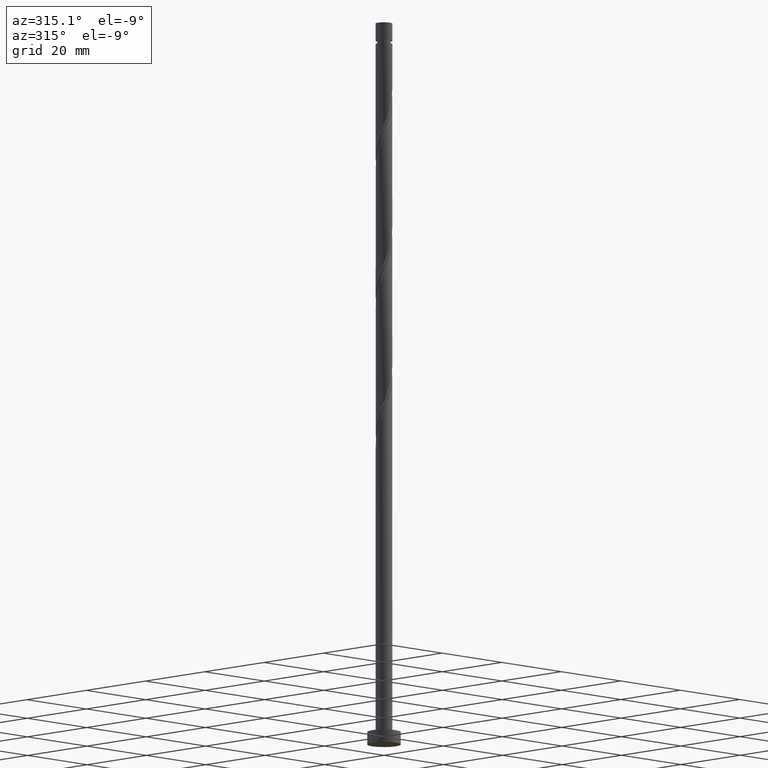
[diagram: clean part render]
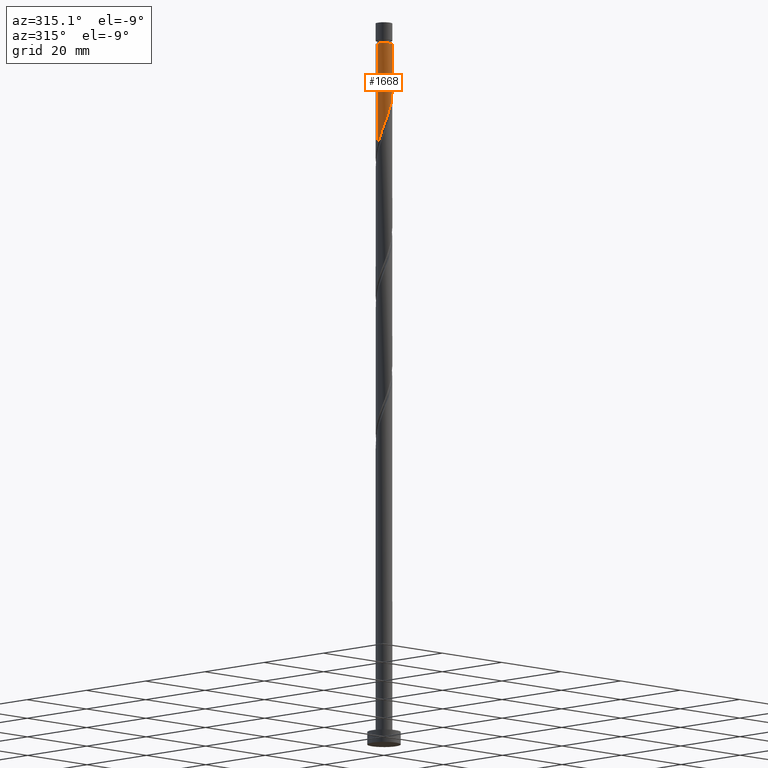
[diagram: same view with one face highlighted and labeled with its STEP entity id]
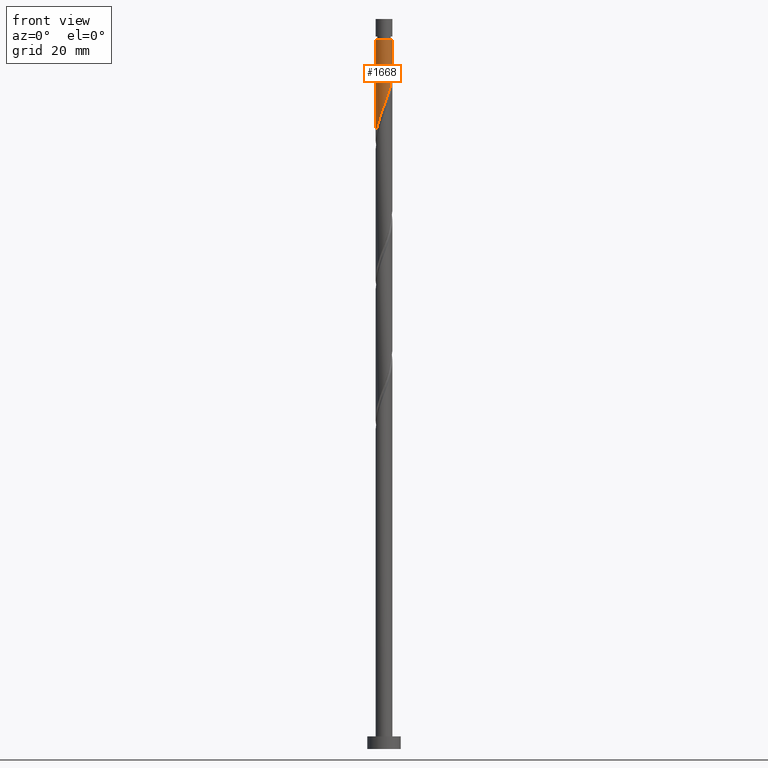
[diagram: same view with one face highlighted and labeled with its STEP entity id]
A machine part, auxiliary view. The second image highlights one B-rep face of the part: STEP entity #1668.
A second angle (front view) of the same face is appended — the face is thin or edge-on in the first view.
In plain terms, the highlighted cylindrical surface (edge-blend (fillet) strip) has radius 2 mm, axis along (-0, -0, -1).
Its self-contained STEP definition (entity closure, byte-faithful):
#14 = CARTESIAN_POINT ( 'NONE',  ( 2.000000000000000000, 3.289832577596410225E-16, 161.5817495075736190 ) ) ;
#34 = CARTESIAN_POINT ( 'NONE',  ( 0.000000000000000000, 0.000000000000000000, 168.8515161856969371 ) ) ;
#97 = DIRECTION ( 'NONE',  ( -0.000000000000000000, -0.000000000000000000, -1.000000000000000000 ) ) ;
#106 = DIRECTION ( 'NONE',  ( -1.000000000000000000, 0.000000000000000000, 0.000000000000000000 ) ) ;
#122 = DIRECTION ( 'NONE',  ( -0.000000000000000000, -0.000000000000000000, -1.000000000000000000 ) ) ;
#137 = CARTESIAN_POINT ( 'NONE',  ( 0.6353262412077166355, -1.896407278838824650, 154.9626272968080798 ) ) ;
#139 = CARTESIAN_POINT ( 'NONE',  ( -2.000000000000000000, 0.000000000000000000, 173.8199999999999932 ) ) ;
#151 = CARTESIAN_POINT ( 'NONE',  ( 2.000000000000000000, -0.2010075630518415035, 161.0483231383844043 ) ) ;
#153 = VERTEX_POINT ( 'NONE', #1635 ) ;
#159 = VERTEX_POINT ( 'NONE', #589 ) ;
#214 = EDGE_CURVE ( 'NONE', #802, #153, #1112, .T. ) ;
#219 = CARTESIAN_POINT ( 'NONE',  ( 0.8849929959097647680, -1.812764992401015629, 155.6570717412524800 ) ) ;
#266 = CARTESIAN_POINT ( 'NONE',  ( -1.896407278838824428, -0.6353262412077168575, 146.6292939634746801 ) ) ;
#269 = CARTESIAN_POINT ( 'NONE',  ( 0.000000000000000000, 0.000000000000000000, 173.8199999999999932 ) ) ;
#310 = ORIENTED_EDGE ( 'NONE', *, *, #657, .F. ) ;
#311 = DIRECTION ( 'NONE',  ( -1.000000000000000000, 0.000000000000000000, 0.000000000000000000 ) ) ;
#339 = AXIS2_PLACEMENT_3D ( 'NONE', #34, #1122, #311 ) ;
#384 = CARTESIAN_POINT ( 'NONE',  ( -2.000000000000000444, -0.06148390331533977460, 145.0782465289351251 ) ) ;
#389 = EDGE_LOOP ( 'NONE', ( #653, #1454, #1551, #310 ) ) ;
#407 = CARTESIAN_POINT ( 'NONE',  ( -2.000000000000000000, -8.523657132863426313E-16, 144.9150828409069618 ) ) ;
#413 = CARTESIAN_POINT ( 'NONE',  ( -1.980049565276631895, -0.3856594865056686139, 145.9348495190302515 ) ) ;
#462 = CARTESIAN_POINT ( 'NONE',  ( 1.672808912829662153, -1.127404036555502698, 158.4348495190303368 ) ) ;
#507 = CARTESIAN_POINT ( 'NONE',  ( -1.127404036555501587, -1.672808912829662598, 150.1015161856968803 ) ) ;
#516 = CARTESIAN_POINT ( 'NONE',  ( -1.324673758792283218, -1.498412303996174755, 149.4070717412524516 ) ) ;
#526 = CARTESIAN_POINT ( 'NONE',  ( -1.667354236715039573, -1.104504345536226673, 148.0181828523636227 ) ) ;
#529 = CARTESIAN_POINT ( 'NONE',  ( 2.000000000000000000, 2.449293598294706414E-16, 173.8199999999999932 ) ) ;
#563 = VECTOR ( 'NONE', #1620, 1000.000000000000000 ) ;
#589 = CARTESIAN_POINT ( 'NONE',  ( 2.000000000000000000, 3.289832577596410225E-16, 161.5817495075736474 ) ) ;
#645 = CARTESIAN_POINT ( 'NONE',  ( 1.959999999999999520, -0.3979949748426491740, 160.5181828523636227 ) ) ;
#653 = ORIENTED_EDGE ( 'NONE', *, *, #1713, .F. ) ;
#657 = EDGE_CURVE ( 'NONE', #159, #1019, #1267, .T. ) ;
#688 = LINE ( 'NONE', #139, #1422 ) ;
#754 = EDGE_CURVE ( 'NONE', #153, #1019, #688, .T. ) ;
#774 = CARTESIAN_POINT ( 'NONE',  ( 1.907602967534731242, -0.6560338701139463158, 159.8237384079191372 ) ) ;
#777 = FACE_OUTER_BOUND ( 'NONE', #389, .T. ) ;
#785 = CARTESIAN_POINT ( 'NONE',  ( -1.521943481029062628, -1.324015695162687134, 148.7126272968080514 ) ) ;
#786 = CARTESIAN_POINT ( 'NONE',  ( 1.999999999999991340, 2.449293598294700991E-16, 168.8515161856969371 ) ) ;
#802 = VERTEX_POINT ( 'NONE', #786 ) ;
#828 = CARTESIAN_POINT ( 'NONE',  ( -0.1399560795713535588, -2.012397032465267355, 152.8792939634746801 ) ) ;
#866 = CARTESIAN_POINT ( 'NONE',  ( 1.324015695162686468, -1.521943481029062628, 157.0459606301413373 ) ) ;
#930 = CARTESIAN_POINT ( 'NONE',  ( -1.812764992401015629, -0.8849929959097647680, 147.3237384079191372 ) ) ;
#941 = CARTESIAN_POINT ( 'NONE',  ( -1.996223298870949847, -0.1228517034671579300, 145.2404050745858228 ) ) ;
#1007 = CARTESIAN_POINT ( 'NONE',  ( 1.498412303996174755, -1.324673758792283218, 157.7404050745858513 ) ) ;
#1019 = VERTEX_POINT ( 'NONE', #407 ) ;
#1052 = CARTESIAN_POINT ( 'NONE',  ( -2.000000000000000000, -8.523657132863426313E-16, 144.9150828409069618 ) ) ;
#1098 = CARTESIAN_POINT ( 'NONE',  ( 0.3856594865056680588, -1.980049565276632562, 154.2681828523635374 ) ) ;
#1112 = CIRCLE ( 'NONE', #339, 1.999999999999991340 ) ;
#1122 = DIRECTION ( 'NONE',  ( -0.000000000000000000, -0.000000000000000000, -1.000000000000000000 ) ) ;
#1267 =( BOUNDED_CURVE ( )  B_SPLINE_CURVE ( 2, ( #14, #151, #645, #774, #1457, #462, #1007, #866, #1302, #219, #137, #1098, #1496, #828, #1411, #1503, #1712, #507, #516, #785, #526, #930, #266, #413, #941, #384, #1052 ),
 .UNSPECIFIED., .F., .T. ) 
 B_SPLINE_CURVE_WITH_KNOTS ( ( 3, 2, 2, 2, 2, 2, 2, 2, 2, 2, 2, 2, 2, 3 ),
 ( 0.3045317669814461836, 0.3125000000000000000, 0.3229166666666666852, 0.3333333333333333148, 0.3437500000000000000, 0.3541666666666666852, 0.3645833333333333148, 0.3750000000000000000, 0.3854166666666666852, 0.3958333333333333148, 0.4062500000000000000, 0.4166666666666666852, 0.4270833333333333148, 0.4295317669814465167 ),
 .UNSPECIFIED. ) 
 CURVE ( )  GEOMETRIC_REPRESENTATION_ITEM ( )  RATIONAL_B_SPLINE_CURVE ( ( 0.9062941362546469426, 0.9031415850403511358, 0.9090909090909264911, 0.9013135103398449699, 0.9090909090909264911, 0.9013135103398449699, 0.9090909090909264911, 0.9013135103398449699, 0.9090909090909264911, 0.9013135103398449699, 0.9090909090909264911, 0.9013135103398449699, 0.9090909090909264911, 0.9013135103398449699, 0.9090909090909264911, 0.9013135103398449699, 0.9090909090909264911, 0.9013135103398449699, 0.9090909090909264911, 0.9013135103398449699, 0.9090909090909264911, 0.9013135103398449699, 0.9090909090909264911, 0.9013135103398449699, 0.9090909090909264911, 0.9072628343904201031, 0.9062941362546468316 ) ) 
 REPRESENTATION_ITEM ( '' )  );
#1302 = CARTESIAN_POINT ( 'NONE',  ( 1.104504345536226007, -1.667354236715040239, 156.3515161856969371 ) ) ;
#1320 = CYLINDRICAL_SURFACE ( 'NONE', #1371, 2.000000000000000000 ) ;
#1371 = AXIS2_PLACEMENT_3D ( 'NONE', #269, #97, #106 ) ;
#1411 = CARTESIAN_POINT ( 'NONE',  ( -0.3979949748426491185, -1.959999999999999520, 152.1848495190302515 ) ) ;
#1422 = VECTOR ( 'NONE', #122, 1000.000000000000000 ) ;
#1454 = ORIENTED_EDGE ( 'NONE', *, *, #214, .T. ) ;
#1457 = CARTESIAN_POINT ( 'NONE',  ( 1.790205940182196809, -0.8917189533347242847, 159.1292939634747370 ) ) ;
#1496 = CARTESIAN_POINT ( 'NONE',  ( 0.1228517034671573194, -1.996223298870950735, 153.5737384079191941 ) ) ;
#1503 = CARTESIAN_POINT ( 'NONE',  ( -0.6560338701139454276, -1.907602967534731686, 151.4904050745857944 ) ) ;
#1551 = ORIENTED_EDGE ( 'NONE', *, *, #754, .T. ) ;
#1620 = DIRECTION ( 'NONE',  ( -0.000000000000000000, -0.000000000000000000, -1.000000000000000000 ) ) ;
#1635 = CARTESIAN_POINT ( 'NONE',  ( -1.999999999999991340, 0.000000000000000000, 168.8515161856969371 ) ) ;
#1668 = ADVANCED_FACE ( 'NONE', ( #777 ), #1320, .T. ) ;
#1712 = CARTESIAN_POINT ( 'NONE',  ( -0.8917189533347236186, -1.790205940182197697, 150.7959606301414226 ) ) ;
#1713 = EDGE_CURVE ( 'NONE', #802, #159, #1722, .T. ) ;
#1722 = LINE ( 'NONE', #529, #563 ) ;